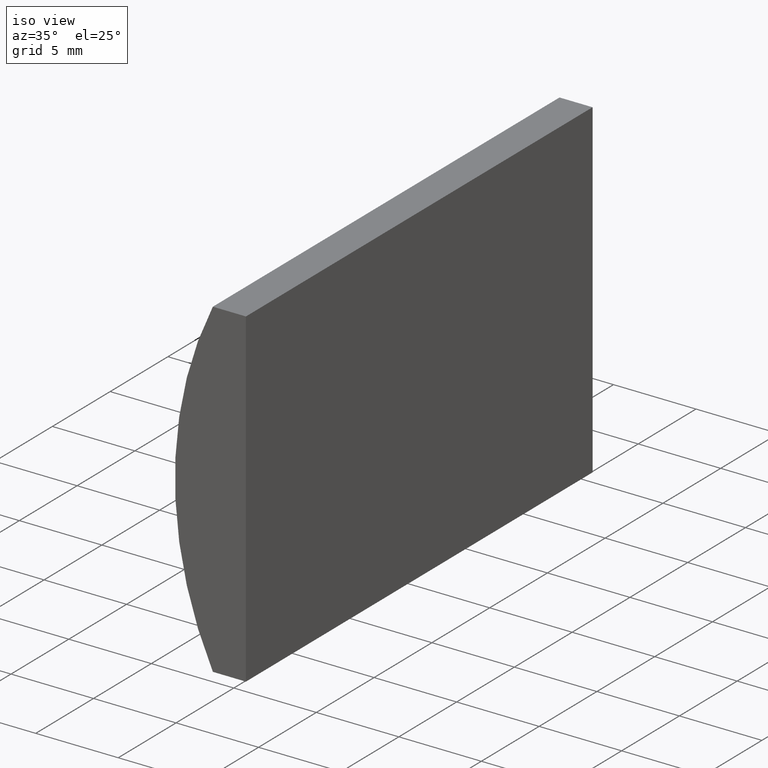
[diagram: clean part render]
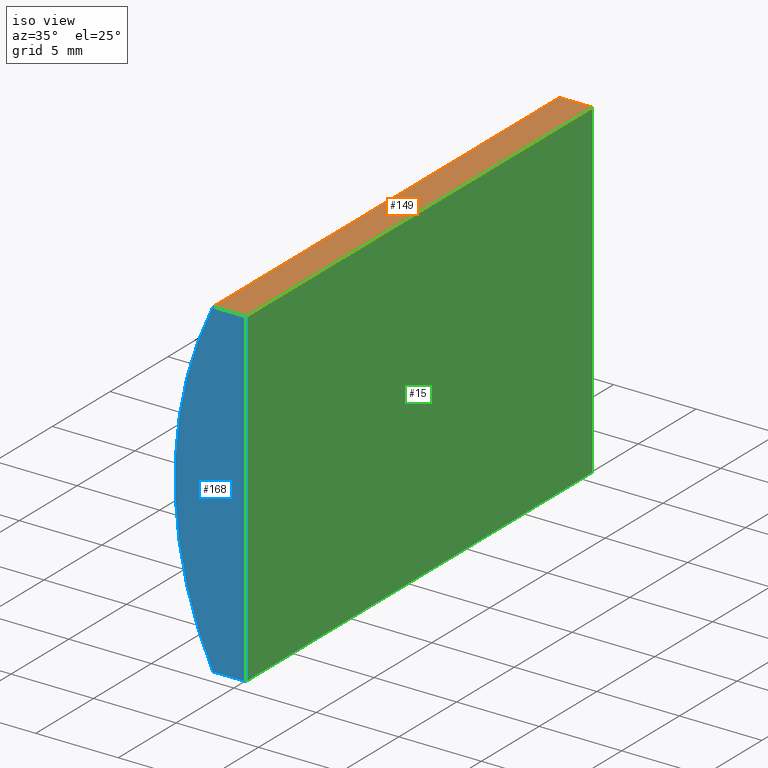
[diagram: same view with three faces highlighted in distinct colors, each labeled with its STEP entity id]
A machine part, iso view with three faces highlighted in distinct colors.
Their STEP definitions:

[orange] entity #149 — the highlighted planar face has unit normal (0, 0, -1).
#3 = CARTESIAN_POINT ( 'NONE',  ( -16.26823863667994600, 30.00000000000000000, 10.00000000000000000 ) ) ;
#6 = LINE ( 'NONE', #158, #125 ) ;
#9 = EDGE_CURVE ( 'NONE', #44, #12, #161, .T. ) ;
#11 = ORIENTED_EDGE ( 'NONE', *, *, #199, .F. ) ;
#12 = VERTEX_POINT ( 'NONE', #132 ) ;
#18 = LINE ( 'NONE', #134, #113 ) ;
#23 = DIRECTION ( 'NONE',  ( -1.000000000000000000, 0.0000000000000000000, -0.0000000000000000000 ) ) ;
#24 = DIRECTION ( 'NONE',  ( 0.0000000000000000000, 0.0000000000000000000, -1.000000000000000000 ) ) ;
#40 = VERTEX_POINT ( 'NONE', #3 ) ;
#44 = VERTEX_POINT ( 'NONE', #119 ) ;
#50 = CARTESIAN_POINT ( 'NONE',  ( -16.26823863667994600, 0.0000000000000000000, 10.00000000000000000 ) ) ;
#56 = VECTOR ( 'NONE', #110, 1000.000000000000000 ) ;
#61 = EDGE_CURVE ( 'NONE', #40, #44, #6, .T. ) ;
#79 = ORIENTED_EDGE ( 'NONE', *, *, #145, .F. ) ;
#93 = ORIENTED_EDGE ( 'NONE', *, *, #9, .T. ) ;
#96 = CARTESIAN_POINT ( 'NONE',  ( -14.26479566514873600, 30.00000000000000000, 10.00000000000000000 ) ) ;
#110 = DIRECTION ( 'NONE',  ( -0.0000000000000000000, -1.000000000000000000, -0.0000000000000000000 ) ) ;
#112 = DIRECTION ( 'NONE',  ( 1.000000000000000000, 0.0000000000000000000, 0.0000000000000000000 ) ) ;
#113 = VECTOR ( 'NONE', #167, 1000.000000000000000 ) ;
#119 = CARTESIAN_POINT ( 'NONE',  ( -16.26823863667994600, 0.0000000000000000000, 10.00000000000000000 ) ) ;
#125 = VECTOR ( 'NONE', #162, 1000.000000000000000 ) ;
#128 = CARTESIAN_POINT ( 'NONE',  ( -14.26479566514873600, 30.00000000000000000, 10.00000000000000000 ) ) ;
#132 = CARTESIAN_POINT ( 'NONE',  ( -14.26479566514873600, 0.0000000000000000000, 10.00000000000000000 ) ) ;
#134 = CARTESIAN_POINT ( 'NONE',  ( -16.26823863667994600, 30.00000000000000000, 10.00000000000000000 ) ) ;
#140 = CARTESIAN_POINT ( 'NONE',  ( -16.26823863667994600, 30.00000000000000000, 10.00000000000000000 ) ) ;
#145 = EDGE_CURVE ( 'NONE', #202, #12, #185, .T. ) ;
#149 = ADVANCED_FACE ( 'NONE', ( #195 ), #186, .F. ) ;
#151 = AXIS2_PLACEMENT_3D ( 'NONE', #140, #24, #23 ) ;
#158 = CARTESIAN_POINT ( 'NONE',  ( -16.26823863667994600, 30.00000000000000000, 10.00000000000000000 ) ) ;
#161 = LINE ( 'NONE', #50, #174 ) ;
#162 = DIRECTION ( 'NONE',  ( -0.0000000000000000000, -1.000000000000000000, -0.0000000000000000000 ) ) ;
#166 = EDGE_LOOP ( 'NONE', ( #93, #79, #11, #194 ) ) ;
#167 = DIRECTION ( 'NONE',  ( 1.000000000000000000, 0.0000000000000000000, 0.0000000000000000000 ) ) ;
#174 = VECTOR ( 'NONE', #112, 1000.000000000000000 ) ;
#185 = LINE ( 'NONE', #128, #56 ) ;
#186 = PLANE ( 'NONE',  #151 ) ;
#194 = ORIENTED_EDGE ( 'NONE', *, *, #61, .T. ) ;
#195 = FACE_OUTER_BOUND ( 'NONE', #166, .T. ) ;
#199 = EDGE_CURVE ( 'NONE', #40, #202, #18, .T. ) ;
#202 = VERTEX_POINT ( 'NONE', #96 ) ;

[blue] entity #168 — the highlighted planar face has unit normal (0, 1, 0).
#9 = EDGE_CURVE ( 'NONE', #44, #12, #161, .T. ) ;
#12 = VERTEX_POINT ( 'NONE', #132 ) ;
#19 = CARTESIAN_POINT ( 'NONE',  ( 4.355204334851265500, 0.0000000000000000000, 4.286263797015675000E-017 ) ) ;
#28 = AXIS2_PLACEMENT_3D ( 'NONE', #19, #81, #171 ) ;
#30 = EDGE_LOOP ( 'NONE', ( #124, #98, #71, #135 ) ) ;
#31 = FACE_OUTER_BOUND ( 'NONE', #30, .T. ) ;
#34 = CIRCLE ( 'NONE', #177, 22.92000000000000200 ) ;
#35 = CARTESIAN_POINT ( 'NONE',  ( 4.355204334851265500, 0.0000000000000000000, 4.286263797015675000E-017 ) ) ;
#36 = CARTESIAN_POINT ( 'NONE',  ( -14.26479566514874300, 0.0000000000000000000, -10.00000000000000000 ) ) ;
#41 = DIRECTION ( 'NONE',  ( 0.0000000000000000000, 1.000000000000000000, 0.0000000000000000000 ) ) ;
#42 = EDGE_CURVE ( 'NONE', #53, #44, #34, .T. ) ;
#44 = VERTEX_POINT ( 'NONE', #119 ) ;
#48 = DIRECTION ( 'NONE',  ( 0.0000000000000000000, 0.0000000000000000000, 1.000000000000000000 ) ) ;
#50 = CARTESIAN_POINT ( 'NONE',  ( -16.26823863667994600, 0.0000000000000000000, 10.00000000000000000 ) ) ;
#53 = VERTEX_POINT ( 'NONE', #153 ) ;
#54 = PLANE ( 'NONE',  #28 ) ;
#71 = ORIENTED_EDGE ( 'NONE', *, *, #90, .F. ) ;
#74 = VECTOR ( 'NONE', #146, 1000.000000000000000 ) ;
#77 = DIRECTION ( 'NONE',  ( -1.000000000000000000, -0.0000000000000000000, -0.0000000000000000000 ) ) ;
#81 = DIRECTION ( 'NONE',  ( 0.0000000000000000000, 1.000000000000000000, 0.0000000000000000000 ) ) ;
#87 = LINE ( 'NONE', #169, #204 ) ;
#90 = EDGE_CURVE ( 'NONE', #12, #143, #181, .T. ) ;
#98 = ORIENTED_EDGE ( 'NONE', *, *, #203, .F. ) ;
#112 = DIRECTION ( 'NONE',  ( 1.000000000000000000, 0.0000000000000000000, 0.0000000000000000000 ) ) ;
#119 = CARTESIAN_POINT ( 'NONE',  ( -16.26823863667994600, 0.0000000000000000000, 10.00000000000000000 ) ) ;
#124 = ORIENTED_EDGE ( 'NONE', *, *, #42, .F. ) ;
#132 = CARTESIAN_POINT ( 'NONE',  ( -14.26479566514873600, 0.0000000000000000000, 10.00000000000000000 ) ) ;
#135 = ORIENTED_EDGE ( 'NONE', *, *, #9, .F. ) ;
#143 = VERTEX_POINT ( 'NONE', #150 ) ;
#146 = DIRECTION ( 'NONE',  ( -3.469446951953614200E-016, -0.0000000000000000000, -1.000000000000000000 ) ) ;
#150 = CARTESIAN_POINT ( 'NONE',  ( -14.26479566514874300, 0.0000000000000000000, -10.00000000000000000 ) ) ;
#153 = CARTESIAN_POINT ( 'NONE',  ( -16.26823863667994600, 0.0000000000000000000, -10.00000000000000000 ) ) ;
#161 = LINE ( 'NONE', #50, #174 ) ;
#168 = ADVANCED_FACE ( 'NONE', ( #31 ), #54, .F. ) ;
#169 = CARTESIAN_POINT ( 'NONE',  ( -16.26823863667994600, 0.0000000000000000000, -10.00000000000000000 ) ) ;
#171 = DIRECTION ( 'NONE',  ( 0.0000000000000000000, -0.0000000000000000000, 1.000000000000000000 ) ) ;
#174 = VECTOR ( 'NONE', #112, 1000.000000000000000 ) ;
#177 = AXIS2_PLACEMENT_3D ( 'NONE', #35, #41, #48 ) ;
#181 = LINE ( 'NONE', #36, #74 ) ;
#203 = EDGE_CURVE ( 'NONE', #143, #53, #87, .T. ) ;
#204 = VECTOR ( 'NONE', #77, 1000.000000000000000 ) ;

[green] entity #15 — the highlighted planar face has unit normal (-1, 0, 0).
#4 = VECTOR ( 'NONE', #164, 1000.000000000000000 ) ;
#12 = VERTEX_POINT ( 'NONE', #132 ) ;
#15 = ADVANCED_FACE ( 'NONE', ( #172 ), #33, .F. ) ;
#20 = DIRECTION ( 'NONE',  ( -0.0000000000000000000, -1.000000000000000000, -0.0000000000000000000 ) ) ;
#25 = LINE ( 'NONE', #182, #4 ) ;
#33 = PLANE ( 'NONE',  #137 ) ;
#36 = CARTESIAN_POINT ( 'NONE',  ( -14.26479566514874300, 0.0000000000000000000, -10.00000000000000000 ) ) ;
#46 = EDGE_CURVE ( 'NONE', #121, #143, #107, .T. ) ;
#51 = ORIENTED_EDGE ( 'NONE', *, *, #46, .F. ) ;
#56 = VECTOR ( 'NONE', #110, 1000.000000000000000 ) ;
#67 = EDGE_LOOP ( 'NONE', ( #178, #51, #84, #88 ) ) ;
#74 = VECTOR ( 'NONE', #146, 1000.000000000000000 ) ;
#84 = ORIENTED_EDGE ( 'NONE', *, *, #180, .F. ) ;
#88 = ORIENTED_EDGE ( 'NONE', *, *, #145, .T. ) ;
#90 = EDGE_CURVE ( 'NONE', #12, #143, #181, .T. ) ;
#96 = CARTESIAN_POINT ( 'NONE',  ( -14.26479566514873600, 30.00000000000000000, 10.00000000000000000 ) ) ;
#107 = LINE ( 'NONE', #126, #187 ) ;
#108 = DIRECTION ( 'NONE',  ( -1.000000000000000000, 0.0000000000000000000, 3.469446951953614200E-016 ) ) ;
#110 = DIRECTION ( 'NONE',  ( -0.0000000000000000000, -1.000000000000000000, -0.0000000000000000000 ) ) ;
#121 = VERTEX_POINT ( 'NONE', #136 ) ;
#126 = CARTESIAN_POINT ( 'NONE',  ( -14.26479566514874300, 30.00000000000000000, -10.00000000000000000 ) ) ;
#128 = CARTESIAN_POINT ( 'NONE',  ( -14.26479566514873600, 30.00000000000000000, 10.00000000000000000 ) ) ;
#132 = CARTESIAN_POINT ( 'NONE',  ( -14.26479566514873600, 0.0000000000000000000, 10.00000000000000000 ) ) ;
#136 = CARTESIAN_POINT ( 'NONE',  ( -14.26479566514874300, 30.00000000000000000, -10.00000000000000000 ) ) ;
#137 = AXIS2_PLACEMENT_3D ( 'NONE', #190, #108, #173 ) ;
#143 = VERTEX_POINT ( 'NONE', #150 ) ;
#145 = EDGE_CURVE ( 'NONE', #202, #12, #185, .T. ) ;
#146 = DIRECTION ( 'NONE',  ( -3.469446951953614200E-016, -0.0000000000000000000, -1.000000000000000000 ) ) ;
#150 = CARTESIAN_POINT ( 'NONE',  ( -14.26479566514874300, 0.0000000000000000000, -10.00000000000000000 ) ) ;
#164 = DIRECTION ( 'NONE',  ( -3.469446951953614200E-016, -0.0000000000000000000, -1.000000000000000000 ) ) ;
#172 = FACE_OUTER_BOUND ( 'NONE', #67, .T. ) ;
#173 = DIRECTION ( 'NONE',  ( 3.469446951953614200E-016, 0.0000000000000000000, 1.000000000000000000 ) ) ;
#178 = ORIENTED_EDGE ( 'NONE', *, *, #90, .T. ) ;
#180 = EDGE_CURVE ( 'NONE', #202, #121, #25, .T. ) ;
#181 = LINE ( 'NONE', #36, #74 ) ;
#182 = CARTESIAN_POINT ( 'NONE',  ( -14.26479566514874300, 30.00000000000000000, -10.00000000000000000 ) ) ;
#185 = LINE ( 'NONE', #128, #56 ) ;
#187 = VECTOR ( 'NONE', #20, 1000.000000000000000 ) ;
#190 = CARTESIAN_POINT ( 'NONE',  ( -14.26479566514874300, 30.00000000000000000, -10.00000000000000000 ) ) ;
#202 = VERTEX_POINT ( 'NONE', #96 ) ;